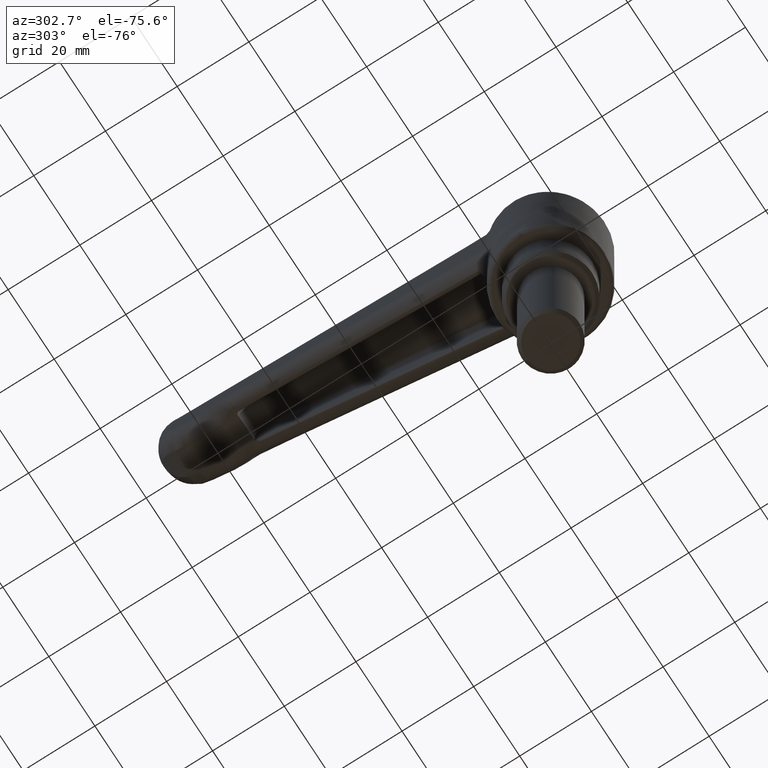
[diagram: clean part render]
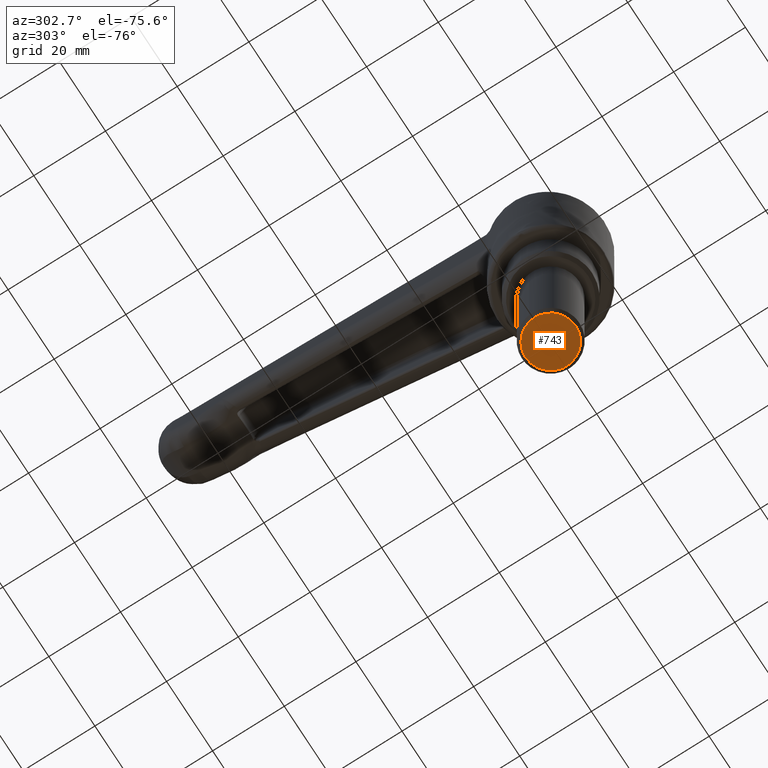
[diagram: same view with one face highlighted and labeled with its STEP entity id]
A machine part, auxiliary view. The second image highlights one B-rep face of the part: STEP entity #743.
In plain terms, the highlighted face is a freeform B-spline surface patch.
Its self-contained STEP definition (entity closure, byte-faithful):
#79=CARTESIAN_POINT('',(-1.281865403538476,6.881629246664064,-39.999999999904929));
#80=VERTEX_POINT('',#79);
#86=CARTESIAN_POINT('',(-7.0,0.0,-40.0));
#87=VERTEX_POINT('',#86);
#88=CARTESIAN_POINT('',(-7.0,0.0,-40.0));
#89=CARTESIAN_POINT('',(-6.999999999999999,5.816492103333519,-39.999999999999993));
#90=CARTESIAN_POINT('',(-1.281865403538476,6.881629246664063,-39.999999999904929));
#98=(BOUNDED_CURVE()B_SPLINE_CURVE(2,(#88,#89,#90),.UNSPECIFIED.,.F.,.U.)B_SPLINE_CURVE_WITH_KNOTS((3,3),(0.500000000000000,0.718554736249370),.UNSPECIFIED.)CURVE()GEOMETRIC_REPRESENTATION_ITEM()RATIONAL_B_SPLINE_CURVE((1.0,0.743947199251987,0.935586817171130))REPRESENTATION_ITEM(''));
#99=EDGE_CURVE('',#87,#80,#98,.T.);
#101=CARTESIAN_POINT('',(0.061085749467842,-6.999733461573987,-39.999999999866667));
#102=VERTEX_POINT('',#101);
#103=CARTESIAN_POINT('',(0.061085749467842,-6.999733461573987,-39.999999999866681));
#104=CARTESIAN_POINT('',(0.030543456723028,-6.999999999999999,-40.0));
#105=CARTESIAN_POINT('',(0.0,-7.0,-40.0));
#106=CARTESIAN_POINT('',(-6.999999999999999,-6.999999999999999,-40.0));
#107=CARTESIAN_POINT('',(-7.0,0.0,-40.0));
#115=(BOUNDED_CURVE()B_SPLINE_CURVE(2,(#103,#104,#105,#106,#107),.UNSPECIFIED.,.F.,.U.)B_SPLINE_CURVE_WITH_KNOTS((3,2,3),(0.248460105615789,0.250000000000000,0.500000000000000),.UNSPECIFIED.)CURVE()GEOMETRIC_REPRESENTATION_ITEM()RATIONAL_B_SPLINE_CURVE((0.996414027986487,0.998195901508702,1.0,0.707106781186547,1.0))REPRESENTATION_ITEM(''));
#116=EDGE_CURVE('',#102,#87,#115,.T.);
#226=CARTESIAN_POINT('',(7.0,0.0,-40.0));
#227=VERTEX_POINT('',#226);
#228=CARTESIAN_POINT('',(7.0,0.0,-40.0));
#229=CARTESIAN_POINT('',(6.999999999999999,-6.939178472225575,-40.000000000000007));
#230=CARTESIAN_POINT('',(0.061085749467842,-6.999733461573987,-39.999999999866681));
#238=(BOUNDED_CURVE()B_SPLINE_CURVE(2,(#228,#229,#230),.UNSPECIFIED.,.F.,.U.)B_SPLINE_CURVE_WITH_KNOTS((3,3),(0.0,0.248460105615789),.UNSPECIFIED.)CURVE()GEOMETRIC_REPRESENTATION_ITEM()RATIONAL_B_SPLINE_CURVE((1.0,0.708910879677845,0.996414027986487))REPRESENTATION_ITEM(''));
#239=EDGE_CURVE('',#227,#102,#238,.T.);
#241=CARTESIAN_POINT('',(-1.281865403538476,6.881629246664064,-39.999999999904936));
#242=CARTESIAN_POINT('',(-0.646398032306419,7.0,-40.0));
#243=CARTESIAN_POINT('',(0.0,7.0,-40.0));
#244=CARTESIAN_POINT('',(6.999999999999999,6.999999999999999,-40.0));
#245=CARTESIAN_POINT('',(7.0,0.0,-40.0));
#253=(BOUNDED_CURVE()B_SPLINE_CURVE(2,(#241,#242,#243,#244,#245),.UNSPECIFIED.,.F.,.U.)B_SPLINE_CURVE_WITH_KNOTS((3,2,3),(0.718554736249369,0.750000000000000,1.0),.UNSPECIFIED.)CURVE()GEOMETRIC_REPRESENTATION_ITEM()RATIONAL_B_SPLINE_CURVE((0.935586817171129,0.963159581934559,1.0,0.707106781186547,1.0))REPRESENTATION_ITEM(''));
#254=EDGE_CURVE('',#80,#227,#253,.T.);
#732=CARTESIAN_POINT('',(-7.699299972865284,-7.699007070790366,-40.0));
#733=CARTESIAN_POINT('',(7.699300348374545,-7.699007070790366,-40.0));
#734=CARTESIAN_POINT('',(-7.699299972865284,7.699011576901511,-40.0));
#735=CARTESIAN_POINT('',(7.699300348374545,7.699011576901511,-40.0));
#736=B_SPLINE_SURFACE_WITH_KNOTS('',1,1,((#732,#734),(#733,#735)),.UNSPECIFIED.,.F.,.F.,.U.,(2,2),(2,2),(0.0,15.398600321239829),(0.0,15.398018647691879),.UNSPECIFIED.);
#737=ORIENTED_EDGE('',*,*,#239,.T.);
#738=ORIENTED_EDGE('',*,*,#116,.T.);
#739=ORIENTED_EDGE('',*,*,#99,.T.);
#740=ORIENTED_EDGE('',*,*,#254,.T.);
#741=EDGE_LOOP('',(#737,#738,#739,#740));
#742=FACE_OUTER_BOUND('',#741,.T.);
#743=ADVANCED_FACE('',(#742),#736,.F.);